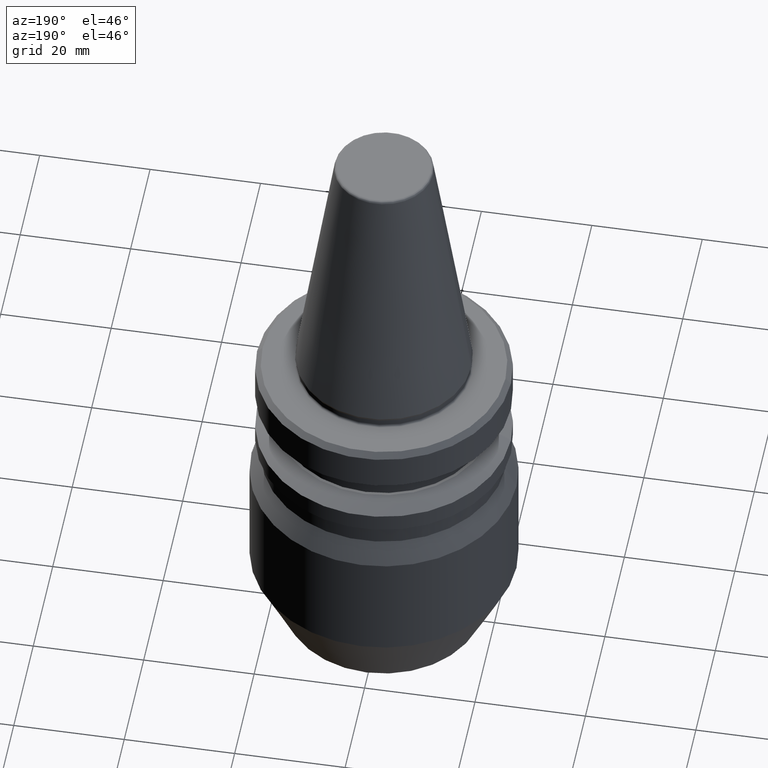
[diagram: clean part render]
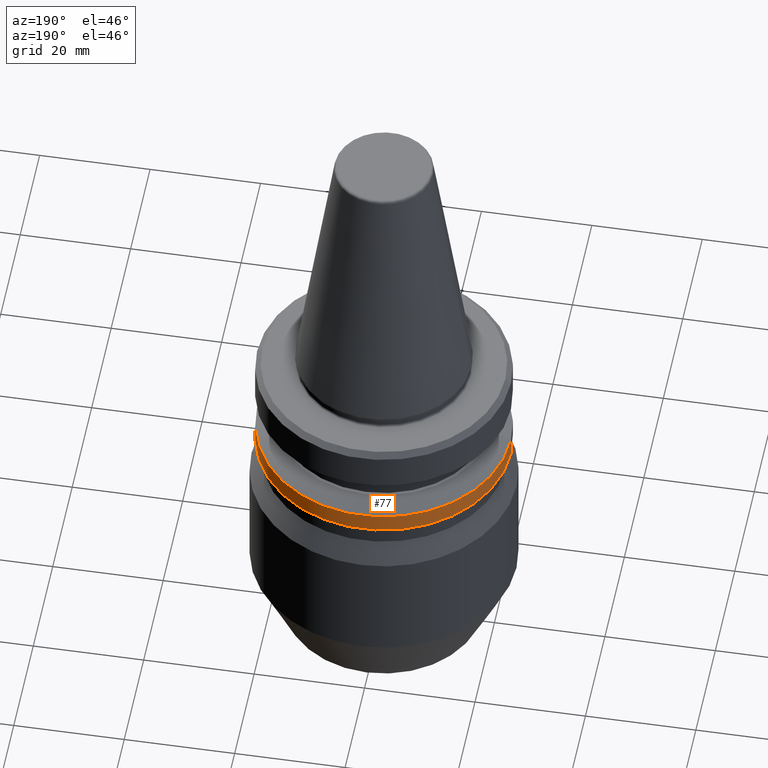
[diagram: same view with one face highlighted and labeled with its STEP entity id]
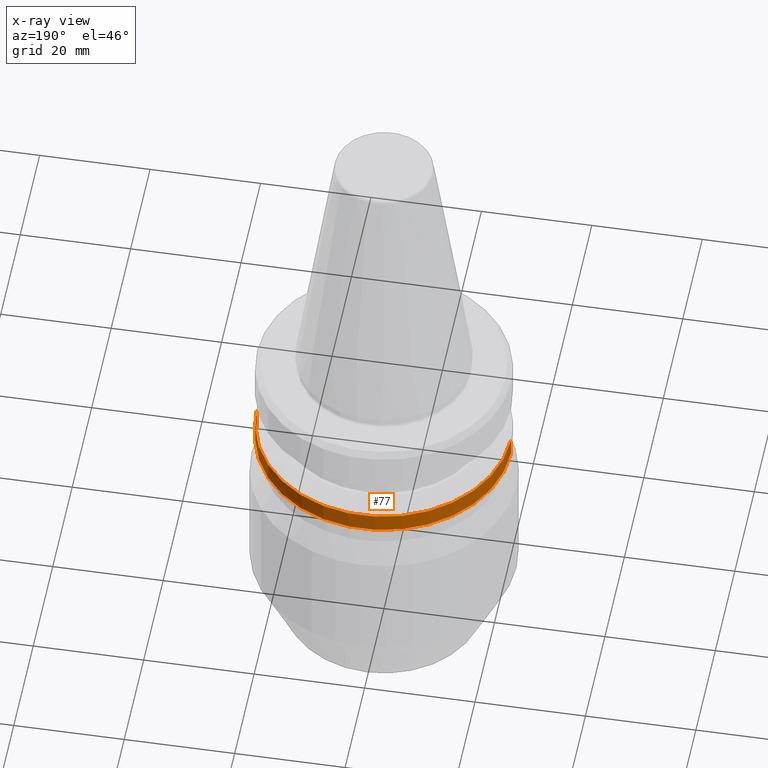
[diagram: x-ray of the same camera — body ghosted, the highlighted face saturated]
A machine part, auxiliary view. The second image highlights one B-rep face of the part: STEP entity #77.
The next image is the same camera in x-ray: the body ghosted, the highlighted face saturated — about 0% of this face is hidden behind the body in this view.
In plain terms, the highlighted cylindrical surface (partial cylindrical patch) has radius 23 mm, axis along (-0, -0, 1).
Its self-contained STEP definition (entity closure, byte-faithful):
#2 = DIRECTION ( 'NONE',  ( 1.000000000000000000, 0.0000000000000000000, 0.0000000000000000000 ) ) ;
#21 = EDGE_CURVE ( 'NONE', #464, #800, #816, .T. ) ;
#24 = VECTOR ( 'NONE', #649, 1000.000000000000000 ) ;
#45 = ORIENTED_EDGE ( 'NONE', *, *, #942, .F. ) ;
#77 = ADVANCED_FACE ( 'NONE', ( #597 ), #986, .T. ) ;
#176 = CARTESIAN_POINT ( 'NONE',  ( -23.00000000000002100, 2.816687638038915100E-015, 80.11315735852554100 ) ) ;
#272 = CARTESIAN_POINT ( 'NONE',  ( 0.0000000000000000000, 0.0000000000000000000, -17.59988266494572100 ) ) ;
#291 = DIRECTION ( 'NONE',  ( -0.0000000000000000000, -0.0000000000000000000, 1.000000000000000000 ) ) ;
#300 = EDGE_CURVE ( 'NONE', #868, #464, #938, .T. ) ;
#364 = AXIS2_PLACEMENT_3D ( 'NONE', #476, #823, #950 ) ;
#389 = ORIENTED_EDGE ( 'NONE', *, *, #300, .T. ) ;
#397 = EDGE_CURVE ( 'NONE', #884, #800, #437, .T. ) ;
#437 = CIRCLE ( 'NONE', #682, 23.00000000000002100 ) ;
#443 = CARTESIAN_POINT ( 'NONE',  ( 23.00000000000002100, 0.0000000000000000000, 80.11315735852554100 ) ) ;
#464 = VERTEX_POINT ( 'NONE', #1000 ) ;
#476 = CARTESIAN_POINT ( 'NONE',  ( 0.0000000000000000000, 0.0000000000000000000, 80.11315735852554100 ) ) ;
#489 = DIRECTION ( 'NONE',  ( -0.0000000000000000000, -0.0000000000000000000, 1.000000000000000000 ) ) ;
#493 = ORIENTED_EDGE ( 'NONE', *, *, #397, .F. ) ;
#597 = FACE_OUTER_BOUND ( 'NONE', #1009, .T. ) ;
#605 = DIRECTION ( 'NONE',  ( -0.0000000000000000000, -0.0000000000000000000, 1.000000000000000000 ) ) ;
#611 = CARTESIAN_POINT ( 'NONE',  ( 23.00000000000002100, 0.0000000000000000000, -20.99999999999990800 ) ) ;
#649 = DIRECTION ( 'NONE',  ( -0.0000000000000000000, -0.0000000000000000000, 1.000000000000000000 ) ) ;
#682 = AXIS2_PLACEMENT_3D ( 'NONE', #272, #605, #2 ) ;
#688 = AXIS2_PLACEMENT_3D ( 'NONE', #832, #489, #782 ) ;
#694 = CARTESIAN_POINT ( 'NONE',  ( 23.00000000000002100, 0.0000000000000000000, -17.59988266494572100 ) ) ;
#747 = ORIENTED_EDGE ( 'NONE', *, *, #21, .T. ) ;
#782 = DIRECTION ( 'NONE',  ( 1.000000000000000000, 0.0000000000000000000, 0.0000000000000000000 ) ) ;
#800 = VERTEX_POINT ( 'NONE', #806 ) ;
#806 = CARTESIAN_POINT ( 'NONE',  ( -23.00000000000002100, 2.816687638038915100E-015, -17.59988266494572100 ) ) ;
#816 = LINE ( 'NONE', #176, #1005 ) ;
#823 = DIRECTION ( 'NONE',  ( -0.0000000000000000000, -0.0000000000000000000, 1.000000000000000000 ) ) ;
#832 = CARTESIAN_POINT ( 'NONE',  ( 0.0000000000000000000, 0.0000000000000000000, -20.99999999999990800 ) ) ;
#854 = LINE ( 'NONE', #443, #24 ) ;
#868 = VERTEX_POINT ( 'NONE', #611 ) ;
#884 = VERTEX_POINT ( 'NONE', #694 ) ;
#938 = CIRCLE ( 'NONE', #688, 23.00000000000002100 ) ;
#942 = EDGE_CURVE ( 'NONE', #868, #884, #854, .T. ) ;
#950 = DIRECTION ( 'NONE',  ( 1.000000000000000000, 0.0000000000000000000, 0.0000000000000000000 ) ) ;
#986 = CYLINDRICAL_SURFACE ( 'NONE', #364, 23.00000000000002100 ) ;
#1000 = CARTESIAN_POINT ( 'NONE',  ( -23.00000000000002100, 2.816687638038915100E-015, -20.99999999999990800 ) ) ;
#1005 = VECTOR ( 'NONE', #291, 1000.000000000000000 ) ;
#1009 = EDGE_LOOP ( 'NONE', ( #389, #747, #493, #45 ) ) ;